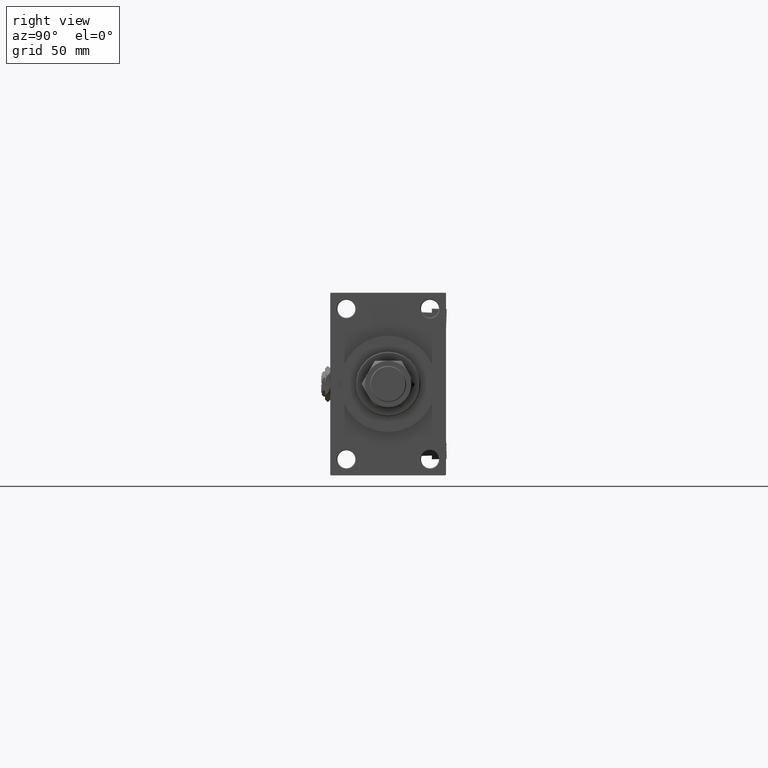
[diagram: clean part render]
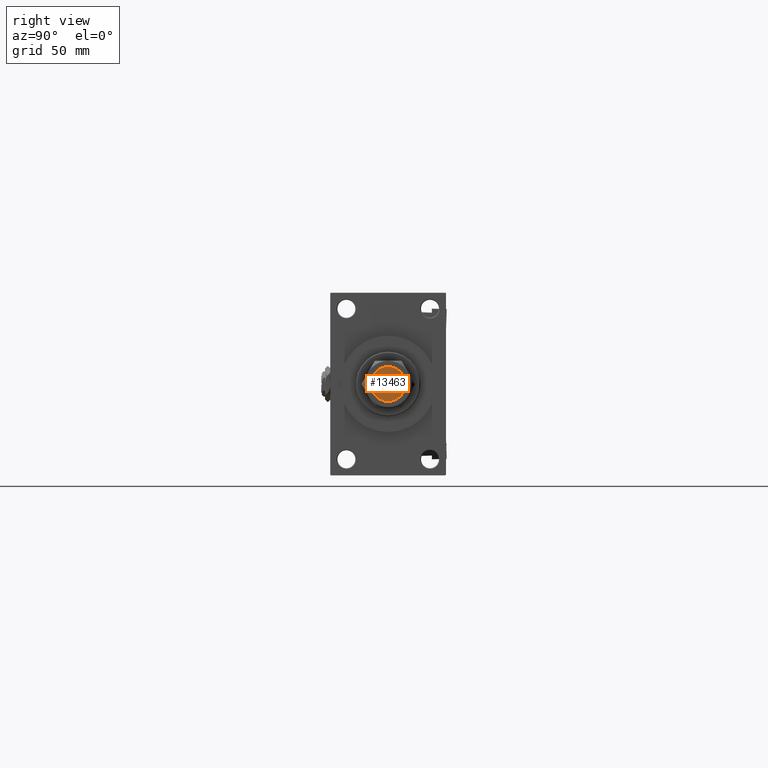
[diagram: same view with one face highlighted and labeled with its STEP entity id]
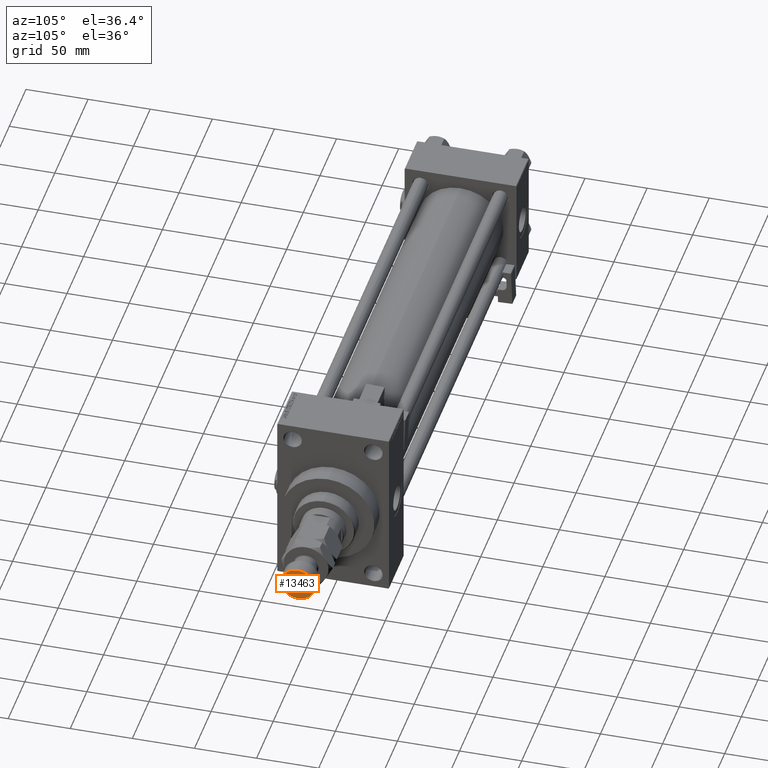
[diagram: same view with one face highlighted and labeled with its STEP entity id]
A machine part, right view. The second image highlights one B-rep face of the part: STEP entity #13463.
A second angle (auxiliary view) of the same face is appended — the face is thin or edge-on in the first view.
In plain terms, the highlighted planar face has unit normal (1, 0, 0).
Its self-contained STEP definition (entity closure, byte-faithful):
#178 = DIRECTION ( 'NONE',  ( 0.000000000000000000, 0.000000000000000000, 1.000000000000000000 ) ) ;
#1361 = VERTEX_POINT ( 'NONE', #46073 ) ;
#2434 = DIRECTION ( 'NONE',  ( 1.000000000000000000, 0.000000000000000000, 0.000000000000000000 ) ) ;
#2956 = FACE_OUTER_BOUND ( 'NONE', #16829, .T. ) ;
#4222 = DIRECTION ( 'NONE',  ( 1.000000000000000000, 0.000000000000000000, 0.000000000000000000 ) ) ;
#4747 = ORIENTED_EDGE ( 'NONE', *, *, #38779, .T. ) ;
#8086 = AXIS2_PLACEMENT_3D ( 'NONE', #29802, #178, #4222 ) ;
#11298 = CARTESIAN_POINT ( 'NONE',  ( 0.000000000000000000, 0.000000000000000000, 59.00000000000000000 ) ) ;
#13463 = ADVANCED_FACE ( 'NONE', ( #2956 ), #36063, .T. ) ;
#15346 = DIRECTION ( 'NONE',  ( 0.000000000000000000, 0.000000000000000000, 1.000000000000000000 ) ) ;
#16001 = CIRCLE ( 'NONE', #40918, 13.50000000000001954 ) ;
#16829 = EDGE_LOOP ( 'NONE', ( #31057, #4747 ) ) ;
#19999 = VERTEX_POINT ( 'NONE', #33710 ) ;
#29802 = CARTESIAN_POINT ( 'NONE',  ( 0.000000000000000000, 0.000000000000000000, 59.00000000000000000 ) ) ;
#31057 = ORIENTED_EDGE ( 'NONE', *, *, #32404, .T. ) ;
#32404 = EDGE_CURVE ( 'NONE', #19999, #1361, #16001, .T. ) ;
#33710 = CARTESIAN_POINT ( 'NONE',  ( -13.50000000000001954, 0.000000000000000000, 59.00000000000000000 ) ) ;
#36063 = PLANE ( 'NONE',  #50006 ) ;
#36855 = DIRECTION ( 'NONE',  ( 1.000000000000000000, 0.000000000000000000, -0.000000000000000000 ) ) ;
#38779 = EDGE_CURVE ( 'NONE', #1361, #19999, #40726, .T. ) ;
#39302 = CARTESIAN_POINT ( 'NONE',  ( 0.000000000000000000, 0.000000000000000000, 59.00000000000000000 ) ) ;
#40726 = CIRCLE ( 'NONE', #8086, 13.50000000000001954 ) ;
#40918 = AXIS2_PLACEMENT_3D ( 'NONE', #39302, #42787, #2434 ) ;
#42787 = DIRECTION ( 'NONE',  ( 0.000000000000000000, 0.000000000000000000, 1.000000000000000000 ) ) ;
#46073 = CARTESIAN_POINT ( 'NONE',  ( 13.50000000000001954, 1.683889348827612034E-15, 59.00000000000000000 ) ) ;
#50006 = AXIS2_PLACEMENT_3D ( 'NONE', #11298, #15346, #36855 ) ;